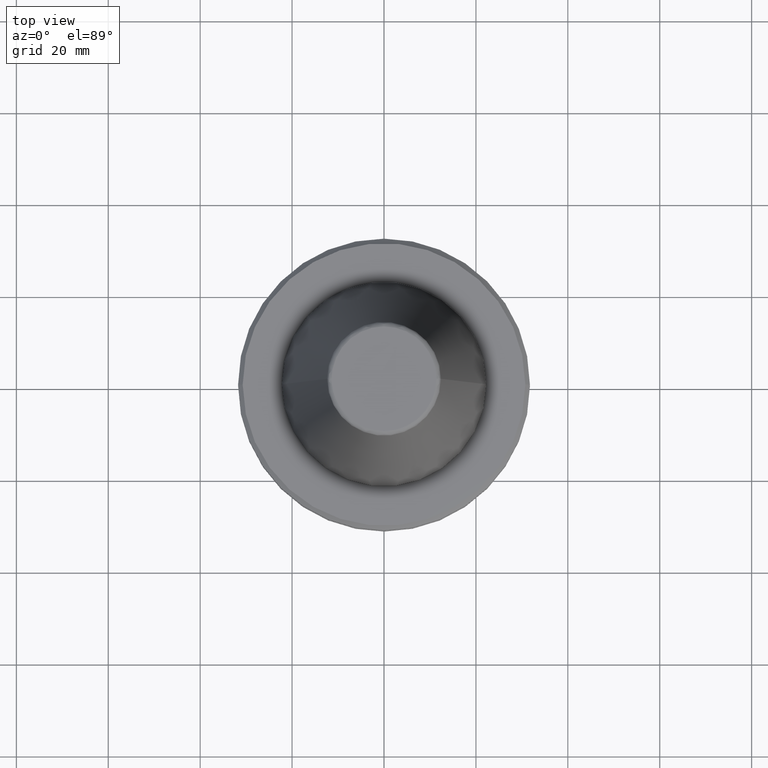
[diagram: clean part render]
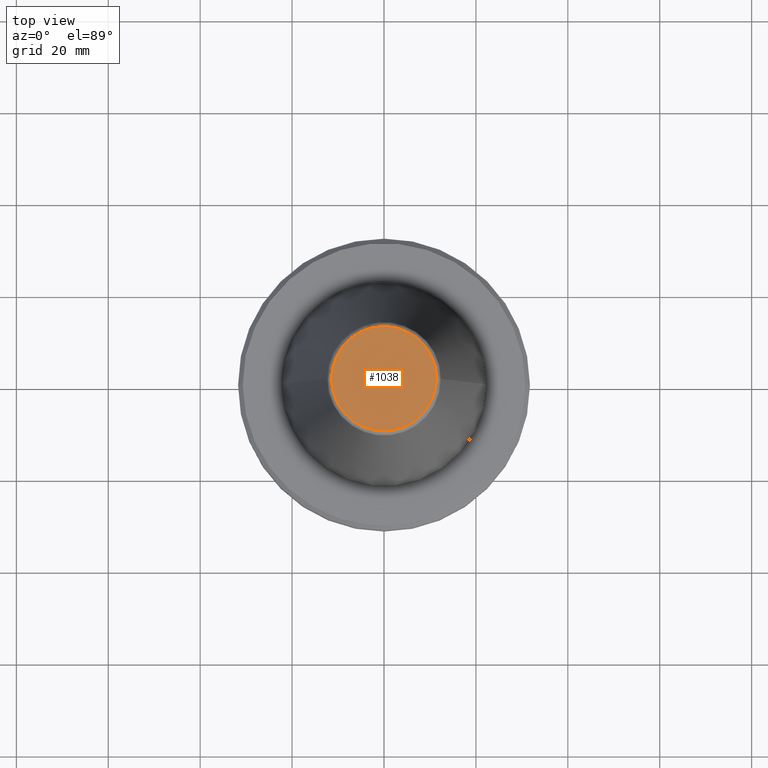
[diagram: same view with one face highlighted and labeled with its STEP entity id]
A machine part, top view. The second image highlights one B-rep face of the part: STEP entity #1038.
In plain terms, the highlighted planar face has unit normal (0, 0, 1).
Its self-contained STEP definition (entity closure, byte-faithful):
#109 = CARTESIAN_POINT ( 'NONE',  ( 0.0000000000000000000, -8.337524199435086500E-014, 68.39999999999999100 ) ) ;
#142 = ORIENTED_EDGE ( 'NONE', *, *, #1512, .F. ) ;
#208 = EDGE_LOOP ( 'NONE', ( #1470, #142 ) ) ;
#320 = VERTEX_POINT ( 'NONE', #394 ) ;
#370 =( BOUNDED_CURVE ( )  B_SPLINE_CURVE ( 3, ( #1344, #1400, #1315, #1311 ),
 .UNSPECIFIED., .F., .T. ) 
 B_SPLINE_CURVE_WITH_KNOTS ( ( 4, 4 ),
 ( 0.0000000000000000000, 1.000000000000000000 ),
 .UNSPECIFIED. ) 
 CURVE ( )  GEOMETRIC_REPRESENTATION_ITEM ( )  RATIONAL_B_SPLINE_CURVE ( ( 1.000000000000000000, 0.3333333333333333700, 0.3333333333333333700, 1.000000000000000000 ) ) 
 REPRESENTATION_ITEM ( '' )  );
#394 = CARTESIAN_POINT ( 'NONE',  ( -11.38516258961893100, 1.418516855507481500E-015, 68.39999999999999100 ) ) ;
#468 = CARTESIAN_POINT ( 'NONE',  ( 11.38516258961893100, 0.0000000000000000000, 68.39999999999999100 ) ) ;
#473 = CARTESIAN_POINT ( 'NONE',  ( -11.38516258961893100, 1.418516855507481500E-015, 68.39999999999999100 ) ) ;
#573 = DIRECTION ( 'NONE',  ( 0.0000000000000000000, 0.0000000000000000000, 1.000000000000000000 ) ) ;
#587 = CARTESIAN_POINT ( 'NONE',  ( -11.38516258961892700, 22.77032517923785800, 68.39999999999999100 ) ) ;
#661 =( BOUNDED_CURVE ( )  B_SPLINE_CURVE ( 3, ( #473, #587, #823, #1198 ),
 .UNSPECIFIED., .F., .F. ) 
 B_SPLINE_CURVE_WITH_KNOTS ( ( 4, 4 ),
 ( 0.0000000000000000000, 1.000000000000000000 ),
 .UNSPECIFIED. ) 
 CURVE ( )  GEOMETRIC_REPRESENTATION_ITEM ( )  RATIONAL_B_SPLINE_CURVE ( ( 1.000000000000000000, 0.3333333333333333700, 0.3333333333333333700, 1.000000000000000000 ) ) 
 REPRESENTATION_ITEM ( '' )  );
#823 = CARTESIAN_POINT ( 'NONE',  ( 11.38516258961893100, 22.77032517923785800, 68.39999999999999100 ) ) ;
#936 = PLANE ( 'NONE',  #1253 ) ;
#1038 = ADVANCED_FACE ( 'NONE', ( #1219 ), #936, .T. ) ;
#1109 = EDGE_CURVE ( 'NONE', #320, #1230, #661, .T. ) ;
#1198 = CARTESIAN_POINT ( 'NONE',  ( 11.38516258961893100, 0.0000000000000000000, 68.39999999999999100 ) ) ;
#1219 = FACE_OUTER_BOUND ( 'NONE', #208, .T. ) ;
#1230 = VERTEX_POINT ( 'NONE', #468 ) ;
#1253 = AXIS2_PLACEMENT_3D ( 'NONE', #109, #573, #1566 ) ;
#1311 = CARTESIAN_POINT ( 'NONE',  ( -11.38516258961893100, 1.418516855507481500E-015, 68.39999999999999100 ) ) ;
#1315 = CARTESIAN_POINT ( 'NONE',  ( -11.38516258961893400, -22.77032517923785800, 68.39999999999999100 ) ) ;
#1344 = CARTESIAN_POINT ( 'NONE',  ( 11.38516258961893100, 0.0000000000000000000, 68.39999999999999100 ) ) ;
#1400 = CARTESIAN_POINT ( 'NONE',  ( 11.38516258961893100, -22.77032517923785800, 68.39999999999999100 ) ) ;
#1470 = ORIENTED_EDGE ( 'NONE', *, *, #1109, .F. ) ;
#1512 = EDGE_CURVE ( 'NONE', #1230, #320, #370, .T. ) ;
#1566 = DIRECTION ( 'NONE',  ( 1.000000000000000000, 0.0000000000000000000, -0.0000000000000000000 ) ) ;